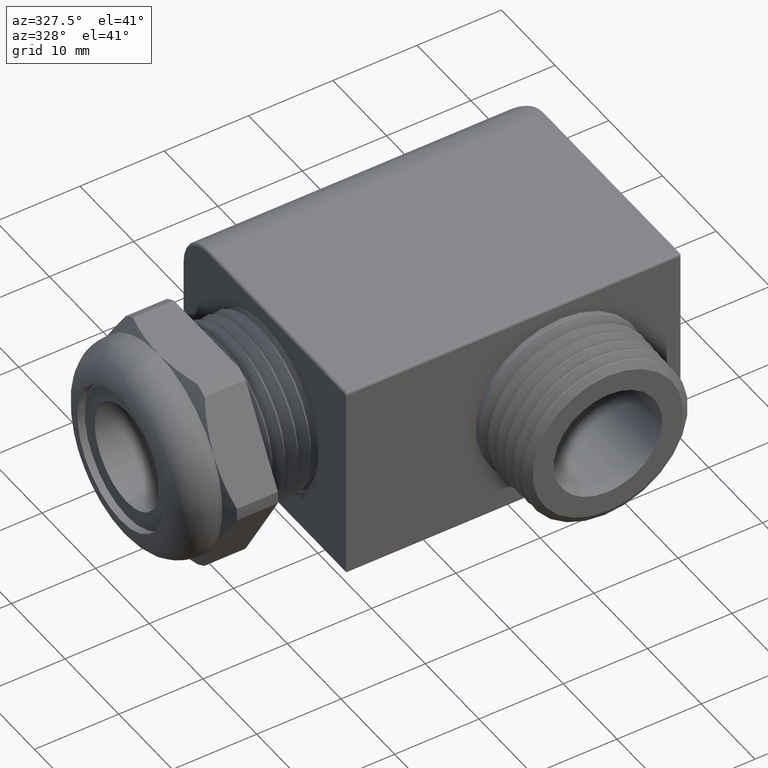
[diagram: clean part render]
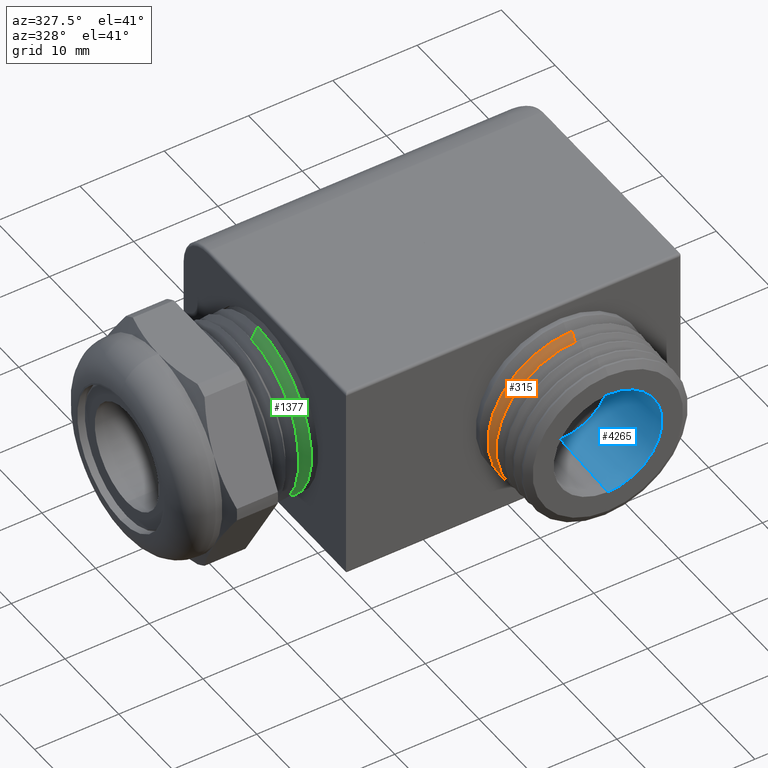
[diagram: same view with three faces highlighted in distinct colors, each labeled with its STEP entity id]
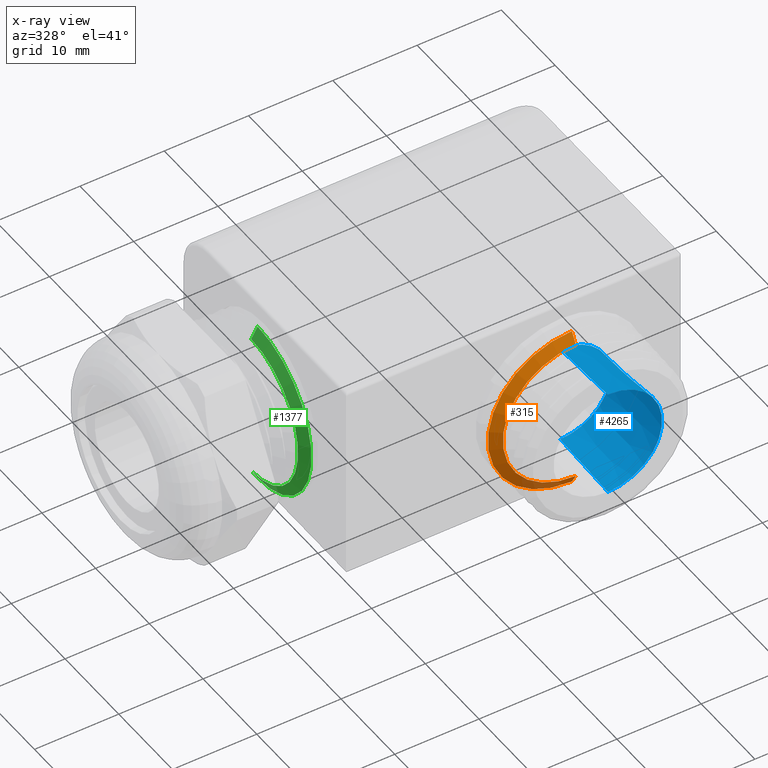
[diagram: x-ray of the same camera — body ghosted, the three highlighted faces saturated]
A machine part, auxiliary view with three faces highlighted in distinct colors.
The next image is the same camera in x-ray (body ghosted, the three faces saturated) — at least one of them is partly hidden behind the body in this view.
Their STEP definitions:

[orange] entity #315 — the highlighted conical surface has half-angle 60 deg.
#187 = ORIENTED_EDGE ( 'NONE', *, *, #188, .T. ) ;
#188 = EDGE_CURVE ( 'NONE', #385, #386, #1505, .T. ) ;
#263 = ORIENTED_EDGE ( 'NONE', *, *, #391, .T. ) ;
#304 = ORIENTED_EDGE ( 'NONE', *, *, #4355, .T. ) ;
#312 = EDGE_LOOP ( 'NONE', ( #316, #187, #263, #304 ) ) ;
#315 = ADVANCED_FACE ( 'NONE', ( #1857 ), #1852, .T. ) ;
#316 = ORIENTED_EDGE ( 'NONE', *, *, #339, .F. ) ;
#339 = EDGE_CURVE ( 'NONE', #385, #340, #1753, .T. ) ;
#340 = VERTEX_POINT ( 'NONE', #1745 ) ;
#385 = VERTEX_POINT ( 'NONE', #2026 ) ;
#386 = VERTEX_POINT ( 'NONE', #2025 ) ;
#389 = VERTEX_POINT ( 'NONE', #2019 ) ;
#391 = EDGE_CURVE ( 'NONE', #386, #389, #2018, .T. ) ;
#1501 = DIRECTION ( 'NONE',  ( 0.0000000000000000000, 0.0000000000000000000, 1.000000000000000000 ) ) ;
#1502 = DIRECTION ( 'NONE',  ( 0.0000000000000000000, 1.000000000000000000, 0.0000000000000000000 ) ) ;
#1503 = CARTESIAN_POINT ( 'NONE',  ( 1.000155367231638300, -0.7155709431788045400, 0.0000000000000000000 ) ) ;
#1504 = AXIS2_PLACEMENT_3D ( 'NONE', #1503, #1502, #1501 ) ;
#1505 = CIRCLE ( 'NONE', #1504, 0.3415681302205366100 ) ;
#1745 = CARTESIAN_POINT ( 'NONE',  ( 1.000155367231638600, -0.6860225665521483300, -0.3927474198190854000 ) ) ;
#1746 = DIRECTION ( 'NONE',  ( 1.060575238724906100E-016, 0.5000000000000012200, -0.8660254037844379300 ) ) ;
#1747 = VECTOR ( 'NONE', #1746, 39.37007874015748100 ) ;
#1748 = CARTESIAN_POINT ( 'NONE',  ( 1.000155367231638300, -0.7155709431788045400, -0.3415681302205366100 ) ) ;
#1753 = LINE ( 'NONE', #1748, #1747 ) ;
#1848 = DIRECTION ( 'NONE',  ( 0.0000000000000000000, 0.0000000000000000000, 1.000000000000000000 ) ) ;
#1849 = DIRECTION ( 'NONE',  ( 0.0000000000000000000, 1.000000000000000000, 0.0000000000000000000 ) ) ;
#1850 = CARTESIAN_POINT ( 'NONE',  ( 1.000155367231638300, -0.7155709431788045400, 0.0000000000000000000 ) ) ;
#1851 = AXIS2_PLACEMENT_3D ( 'NONE', #1850, #1849, #1848 ) ;
#1852 = CONICAL_SURFACE ( 'NONE', #1851, 0.3415681302205366100, 1.047197551196596300 ) ;
#1857 = FACE_OUTER_BOUND ( 'NONE', #312, .T. ) ;
#2015 = DIRECTION ( 'NONE',  ( 0.0000000000000000000, 0.5000000000000012200, 0.8660254037844379300 ) ) ;
#2016 = VECTOR ( 'NONE', #2015, 39.37007874015748100 ) ;
#2017 = CARTESIAN_POINT ( 'NONE',  ( 1.000155367231638300, -0.7155709431788045400, 0.3415681302205366100 ) ) ;
#2018 = LINE ( 'NONE', #2017, #2016 ) ;
#2019 = CARTESIAN_POINT ( 'NONE',  ( 1.000155367231638300, -0.6860225665521483300, 0.3927474198190854000 ) ) ;
#2025 = CARTESIAN_POINT ( 'NONE',  ( 1.000155367231638300, -0.7155709431788045400, 0.3415681302205366100 ) ) ;
#2026 = CARTESIAN_POINT ( 'NONE',  ( 1.000155367231638300, -0.7155709431788045400, -0.3415681302205366100 ) ) ;
#3955 = DIRECTION ( 'NONE',  ( 0.0000000000000000000, 0.0000000000000000000, 1.000000000000000000 ) ) ;
#3956 = DIRECTION ( 'NONE',  ( 0.0000000000000000000, -1.000000000000000000, 0.0000000000000000000 ) ) ;
#3957 = CARTESIAN_POINT ( 'NONE',  ( 1.000155367231638300, -0.6860225665521483300, 0.0000000000000000000 ) ) ;
#3958 = AXIS2_PLACEMENT_3D ( 'NONE', #3957, #3956, #3955 ) ;
#3964 = CIRCLE ( 'NONE', #3958, 0.3927474198190854000 ) ;
#4355 = EDGE_CURVE ( 'NONE', #389, #340, #3964, .T. ) ;

[blue] entity #4265 — the highlighted conical surface has half-angle 3 deg.
#3 = EDGE_CURVE ( 'NONE', #4334, #4142, #1369, .T. ) ;
#1365 = DIRECTION ( 'NONE',  ( 0.0000000000000000000, 0.0000000000000000000, 1.000000000000000000 ) ) ;
#1366 = DIRECTION ( 'NONE',  ( 0.0000000000000000000, 1.000000000000000000, 0.0000000000000000000 ) ) ;
#1367 = CARTESIAN_POINT ( 'NONE',  ( 1.000155367231638600, -0.9499999999999999600, -2.785979454945908300E-017 ) ) ;
#1368 = AXIS2_PLACEMENT_3D ( 'NONE', #1367, #1366, #1365 ) ;
#1369 = CIRCLE ( 'NONE', #1368, 0.2533427227490642800 ) ;
#3249 = DIRECTION ( 'NONE',  ( 0.0000000000000000000, 0.0000000000000000000, -1.000000000000000000 ) ) ;
#3250 = DIRECTION ( 'NONE',  ( 0.0000000000000000000, -1.000000000000000000, 0.0000000000000000000 ) ) ;
#3497 = CARTESIAN_POINT ( 'NONE',  ( 1.000155367231638600, -0.9499999999999999600, -0.2533427227490643300 ) ) ;
#3618 = AXIS2_PLACEMENT_3D ( 'NONE', #3625, #3250, #3249 ) ;
#3619 = CIRCLE ( 'NONE', #3618, 0.2349999999999999900 ) ;
#3625 = CARTESIAN_POINT ( 'NONE',  ( 1.000155367231638600, -0.6000000000000005300, -2.785979454945908300E-017 ) ) ;
#3867 = DIRECTION ( 'NONE',  ( 0.0000000000000000000, -0.9986295347545738300, -0.05233595624294354300 ) ) ;
#3868 = VECTOR ( 'NONE', #3867, 39.37007874015748100 ) ;
#3869 = CARTESIAN_POINT ( 'NONE',  ( 1.000155367231638600, -0.9499999999999999600, -0.2533427227490643300 ) ) ;
#3878 = DIRECTION ( 'NONE',  ( 0.0000000000000000000, 0.0000000000000000000, -1.000000000000000000 ) ) ;
#3879 = DIRECTION ( 'NONE',  ( 0.0000000000000000000, -1.000000000000000000, 0.0000000000000000000 ) ) ;
#3880 = AXIS2_PLACEMENT_3D ( 'NONE', #3901, #3879, #3878 ) ;
#3900 = CONICAL_SURFACE ( 'NONE', #3880, 0.2533427227490642800, 0.05235987755982959200 ) ;
#3901 = CARTESIAN_POINT ( 'NONE',  ( 1.000155367231638600, -0.9499999999999999600, -2.785979454945908300E-017 ) ) ;
#3902 = FACE_OUTER_BOUND ( 'NONE', #4266, .T. ) ;
#3909 = LINE ( 'NONE', #3869, #3868 ) ;
#3910 = CARTESIAN_POINT ( 'NONE',  ( 1.235155367231638400, -0.6000000000000005300, 7.582401355855259500E-033 ) ) ;
#3944 = CARTESIAN_POINT ( 'NONE',  ( 1.000155367231638600, -0.6000000000000005300, -0.2350000000000000100 ) ) ;
#4011 = CARTESIAN_POINT ( 'NONE',  ( 1.000155367231638600, -0.9499999999999999600, 0.2533427227490642200 ) ) ;
#4012 = DIRECTION ( 'NONE',  ( 6.409306129323676300E-018, -0.9986295347545738300, 0.05233595624294354300 ) ) ;
#4013 = VECTOR ( 'NONE', #4012, 39.37007874015748100 ) ;
#4014 = CARTESIAN_POINT ( 'NONE',  ( 1.000155367231638600, -0.9499999999999999600, 0.2533427227490642200 ) ) ;
#4015 = LINE ( 'NONE', #4014, #4013 ) ;
#4016 = CARTESIAN_POINT ( 'NONE',  ( 1.000155367231638600, -0.6000000000000005300, 0.2349999999999999600 ) ) ;
#4041 = DIRECTION ( 'NONE',  ( 0.0000000000000000000, 0.0000000000000000000, -1.000000000000000000 ) ) ;
#4042 = DIRECTION ( 'NONE',  ( 0.0000000000000000000, -1.000000000000000000, 0.0000000000000000000 ) ) ;
#4043 = CARTESIAN_POINT ( 'NONE',  ( 1.000155367231638600, -0.6000000000000005300, -2.785979454945908300E-017 ) ) ;
#4044 = AXIS2_PLACEMENT_3D ( 'NONE', #4043, #4042, #4041 ) ;
#4045 = CIRCLE ( 'NONE', #4044, 0.2349999999999999900 ) ;
#4142 = VERTEX_POINT ( 'NONE', #3497 ) ;
#4166 = EDGE_CURVE ( 'NONE', #4260, #4274, #3619, .T. ) ;
#4260 = VERTEX_POINT ( 'NONE', #3944 ) ;
#4265 = ADVANCED_FACE ( 'NONE', ( #3902 ), #3900, .F. ) ;
#4266 = EDGE_LOOP ( 'NONE', ( #4267, #4269, #4280, #4281, #4282 ) ) ;
#4267 = ORIENTED_EDGE ( 'NONE', *, *, #4333, .F. ) ;
#4269 = ORIENTED_EDGE ( 'NONE', *, *, #4279, .F. ) ;
#4274 = VERTEX_POINT ( 'NONE', #3910 ) ;
#4275 = EDGE_CURVE ( 'NONE', #4260, #4142, #3909, .T. ) ;
#4279 = EDGE_CURVE ( 'NONE', #4274, #4331, #4045, .T. ) ;
#4280 = ORIENTED_EDGE ( 'NONE', *, *, #4166, .F. ) ;
#4281 = ORIENTED_EDGE ( 'NONE', *, *, #4275, .T. ) ;
#4282 = ORIENTED_EDGE ( 'NONE', *, *, #3, .F. ) ;
#4331 = VERTEX_POINT ( 'NONE', #4016 ) ;
#4333 = EDGE_CURVE ( 'NONE', #4331, #4334, #4015, .T. ) ;
#4334 = VERTEX_POINT ( 'NONE', #4011 ) ;

[green] entity #1377 — the highlighted conical surface has half-angle 60 deg.
#430 = VERTEX_POINT ( 'NONE', #2095 ) ;
#431 = VERTEX_POINT ( 'NONE', #2094 ) ;
#435 = EDGE_CURVE ( 'NONE', #450, #430, #2088, .T. ) ;
#438 = EDGE_CURVE ( 'NONE', #449, #431, #2079, .T. ) ;
#449 = VERTEX_POINT ( 'NONE', #2055 ) ;
#450 = VERTEX_POINT ( 'NONE', #2054 ) ;
#683 = EDGE_CURVE ( 'NONE', #430, #431, #2488, .T. ) ;
#1324 = ORIENTED_EDGE ( 'NONE', *, *, #435, .T. ) ;
#1325 = ORIENTED_EDGE ( 'NONE', *, *, #683, .T. ) ;
#1374 = EDGE_CURVE ( 'NONE', #450, #449, #3567, .T. ) ;
#1377 = ADVANCED_FACE ( 'NONE', ( #3514 ), #3513, .T. ) ;
#1378 = EDGE_LOOP ( 'NONE', ( #1379, #1380, #1324, #1325 ) ) ;
#1379 = ORIENTED_EDGE ( 'NONE', *, *, #438, .F. ) ;
#1380 = ORIENTED_EDGE ( 'NONE', *, *, #1374, .F. ) ;
#2054 = CARTESIAN_POINT ( 'NONE',  ( -0.06085790872434520400, 4.519182433362568700E-017, -0.3430385000000000200 ) ) ;
#2055 = CARTESIAN_POINT ( 'NONE',  ( -0.06085790872434520400, 0.0000000000000000000, 0.3430385000000000200 ) ) ;
#2076 = DIRECTION ( 'NONE',  ( 0.4999999999999952800, 1.060575238724910200E-016, 0.8660254037844412600 ) ) ;
#2077 = VECTOR ( 'NONE', #2076, 39.37007874015748100 ) ;
#2078 = CARTESIAN_POINT ( 'NONE',  ( -0.06085790872434520400, 4.201010010093093600E-017, 0.3430385000000000200 ) ) ;
#2079 = LINE ( 'NONE', #2078, #2077 ) ;
#2085 = DIRECTION ( 'NONE',  ( 0.4999999999999952800, 0.0000000000000000000, -0.8660254037844412600 ) ) ;
#2086 = VECTOR ( 'NONE', #2085, 39.37007874015748100 ) ;
#2087 = CARTESIAN_POINT ( 'NONE',  ( -0.06085790872434520400, 0.0000000000000000000, -0.3430385000000000200 ) ) ;
#2088 = LINE ( 'NONE', #2087, #2086 ) ;
#2094 = CARTESIAN_POINT ( 'NONE',  ( -0.03085792271184885400, 0.0000000000000000000, 0.3950000000000000200 ) ) ;
#2095 = CARTESIAN_POINT ( 'NONE',  ( -0.03085792271184885400, 4.837354856632045600E-017, -0.3950000000000000200 ) ) ;
#2485 = DIRECTION ( 'NONE',  ( 0.0000000000000000000, 0.0000000000000000000, 1.000000000000000000 ) ) ;
#2486 = DIRECTION ( 'NONE',  ( -1.000000000000000000, 0.0000000000000000000, 0.0000000000000000000 ) ) ;
#2487 = AXIS2_PLACEMENT_3D ( 'NONE', #2534, #2486, #2485 ) ;
#2488 = CIRCLE ( 'NONE', #2487, 0.3950000000000000200 ) ;
#2534 = CARTESIAN_POINT ( 'NONE',  ( -0.03085792271184885400, 0.0000000000000000000, 0.0000000000000000000 ) ) ;
#3508 = DIRECTION ( 'NONE',  ( 0.0000000000000000000, 0.0000000000000000000, -1.000000000000000000 ) ) ;
#3509 = DIRECTION ( 'NONE',  ( 1.000000000000000000, 0.0000000000000000000, 0.0000000000000000000 ) ) ;
#3510 = CARTESIAN_POINT ( 'NONE',  ( -0.06085790872434520400, 0.0000000000000000000, 0.0000000000000000000 ) ) ;
#3511 = AXIS2_PLACEMENT_3D ( 'NONE', #3510, #3509, #3508 ) ;
#3513 = CONICAL_SURFACE ( 'NONE', #3511, 0.3430385000000000200, 1.047197551196603200 ) ;
#3514 = FACE_OUTER_BOUND ( 'NONE', #1378, .T. ) ;
#3515 = DIRECTION ( 'NONE',  ( 0.0000000000000000000, 0.0000000000000000000, 1.000000000000000000 ) ) ;
#3516 = DIRECTION ( 'NONE',  ( -1.000000000000000000, 0.0000000000000000000, 0.0000000000000000000 ) ) ;
#3517 = AXIS2_PLACEMENT_3D ( 'NONE', #3566, #3516, #3515 ) ;
#3566 = CARTESIAN_POINT ( 'NONE',  ( -0.06085790872434520400, 0.0000000000000000000, 0.0000000000000000000 ) ) ;
#3567 = CIRCLE ( 'NONE', #3517, 0.3430385000000000200 ) ;